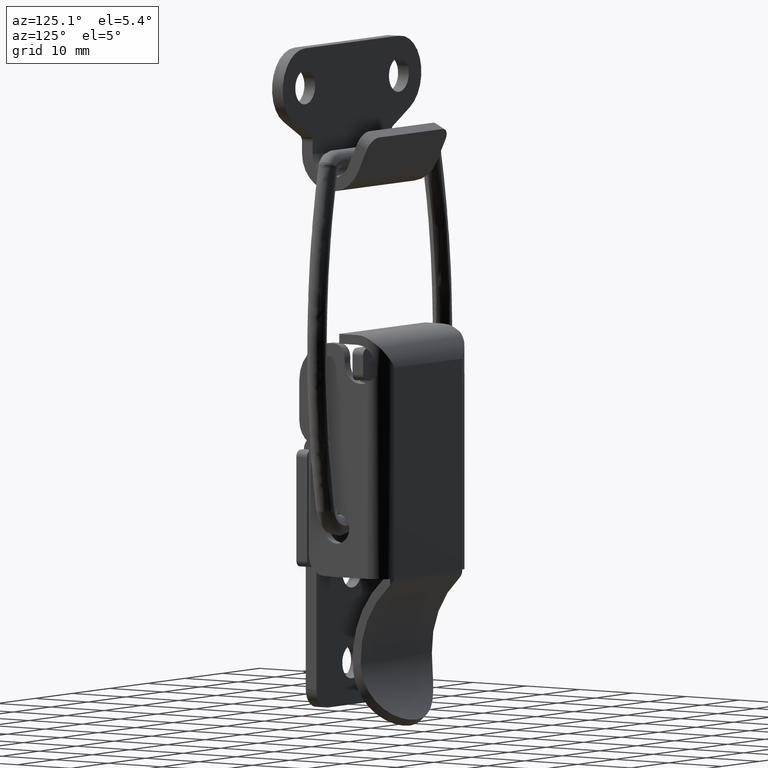
[diagram: clean part render]
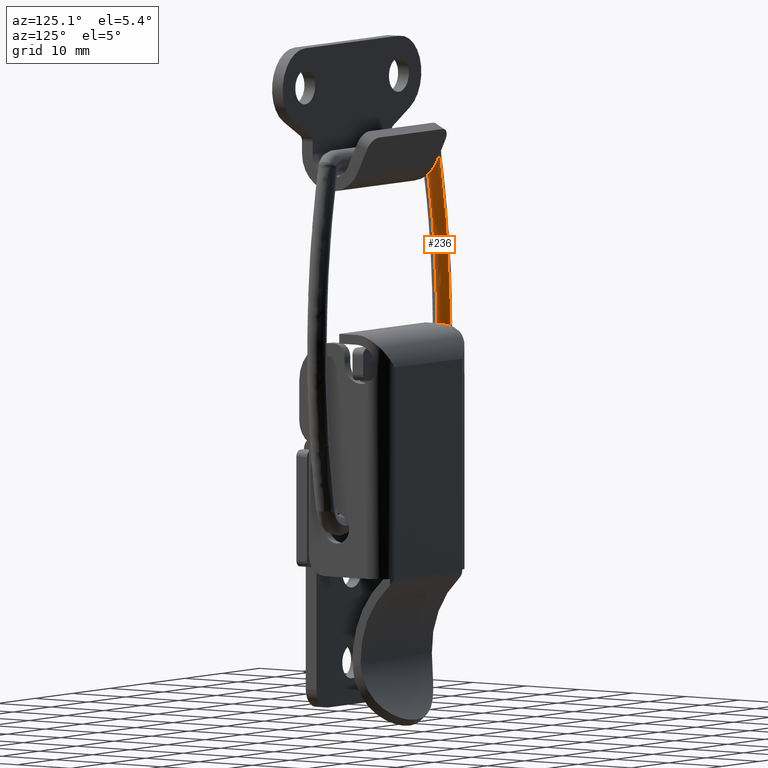
[diagram: same view with one face highlighted and labeled with its STEP entity id]
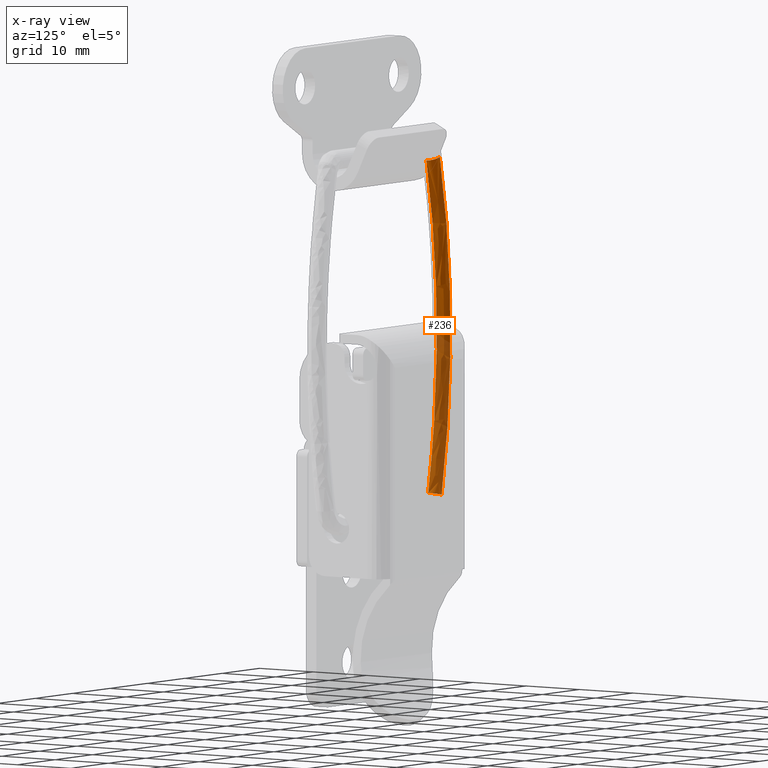
[diagram: x-ray of the same camera — body ghosted, the highlighted face saturated]
A machine part, auxiliary view. The second image highlights one B-rep face of the part: STEP entity #236.
The next image is the same camera in x-ray: the body ghosted, the highlighted face saturated — about 46% of this face is hidden behind the body in this view.
In plain terms, the highlighted face is a freeform B-spline surface patch.
Its self-contained STEP definition (entity closure, byte-faithful):
#236=ADVANCED_FACE('',(#833),#832,.T.);
#832=( BOUNDED_SURFACE() B_SPLINE_SURFACE( 2,2,((#2233,#2234,#2235),(#2236,#2237,#2238),(#2239,#2240,#2241)), .UNSPECIFIED.,.F.,.F.,.F.) B_SPLINE_SURFACE_WITH_KNOTS((3,3),(3,3),(1.57079632683E+00,3.14159265359E+00),(6.74817877553E-03,4.03139454788E-01), .UNSPECIFIED. ) GEOMETRIC_REPRESENTATION_ITEM() RATIONAL_B_SPLINE_SURFACE(((9.99320464349E-01,9.79695528811E-01,9.99214083177E-01),(7.06626276934E-01,6.92749351934E-01,7.06551054085E-01),(9.99320464361E-01,9.79695528822E-01,9.99214083188E-01))) REPRESENTATION_ITEM('') SURFACE() );
#833=FACE_OUTER_BOUND('',#2242,.T.);
#2233=CARTESIAN_POINT('',(-1.38846091981E+01,3.00000000000E+00,-1.43573384935E+00));
#2234=CARTESIAN_POINT('',(-1.93728103813E+01,3.00000000000E+00,-2.74439669393E+01));
#2235=CARTESIAN_POINT('',(-1.43913563508E+01,3.00000000000E+00,-5.35539967446E+01));
#2236=CARTESIAN_POINT('',(-1.24169301115E+01,2.99999999996E+00,-1.74544032083E+00));
#2237=CARTESIAN_POINT('',(-1.78429166352E+01,2.99999999996E+00,-2.74588421339E+01));
#2238=CARTESIAN_POINT('',(-1.29179327405E+01,2.99999999996E+00,-5.32728866870E+01));
#2239=CARTESIAN_POINT('',(-1.24169301115E+01,1.50000000000E+00,-1.74544032083E+00));
#2240=CARTESIAN_POINT('',(-1.78429166352E+01,1.50000000000E+00,-2.74588421339E+01));
#2241=CARTESIAN_POINT('',(-1.29179327405E+01,1.50000000000E+00,-5.32728866870E+01));
#2242=EDGE_LOOP('',(#3002,#3003,#3004,#3005));
#3002=ORIENTED_EDGE('',*,*,#3662,.F.);
#3003=ORIENTED_EDGE('',*,*,#3659,.F.);
#3004=ORIENTED_EDGE('',*,*,#3660,.F.);
#3005=ORIENTED_EDGE('',*,*,#3595,.T.);
#3595=EDGE_CURVE('',#4374,#4394,#4401,.T.);
#3659=EDGE_CURVE('',#4720,#4739,#4825,.T.);
#3660=EDGE_CURVE('',#4374,#4720,#4831,.T.);
#3662=EDGE_CURVE('',#4739,#4394,#4843,.T.);
#4374=VERTEX_POINT('',#6794);
#4394=VERTEX_POINT('',#6817);
#4401=(BOUNDED_CURVE() B_SPLINE_CURVE(2,(#6822,#6823,#6824),.UNSPECIFIED.,.F.,.F.) B_SPLINE_CURVE_WITH_KNOTS((3,3),(8.53094658823E-03,4.03139454961E-01),.UNSPECIFIED.) CURVE() GEOMETRIC_REPRESENTATION_ITEM() RATIONAL_B_SPLINE_CURVE((9.99144730032E-01,9.79783313415E-01,9.99214083205E-01)) REPRESENTATION_ITEM('') );
#4720=VERTEX_POINT('',#7050);
#4739=VERTEX_POINT('',#7062);
#4825=CIRCLE('',#7118,1.32320932970E+02);
#4831=(BOUNDED_CURVE() B_SPLINE_CURVE(3,(#7119,#7120,#7121,#7122,#7123,#7124,#7125,#7126,#7127,#7128,#7129,#7130),.UNSPECIFIED.,.F.,.F.) B_SPLINE_CURVE_WITH_KNOTS((4,2,2,2,2,4),(4.76694483527E-12,1.17571820510E-03,1.46971839424E-03,1.76371858338E-03,2.05771877251E-03,2.35171896165E-03),.UNSPECIFIED.) CURVE() GEOMETRIC_REPRESENTATION_ITEM() RATIONAL_B_SPLINE_CURVE((1.00000000000E+00,1.00000000000E+00,1.00000000000E+00,1.00000000000E+00,1.00000000000E+00,1.00000000000E+00,1.00000000000E+00,1.00000000000E+00,1.00000000000E+00,1.00000000000E+00,1.00000000000E+00,1.00000000000E+00)) REPRESENTATION_ITEM('') );
#4843=CIRCLE('',#7138,1.50000000000E+00);
#6794=CARTESIAN_POINT('',(-1.24645816482E+01,1.49999999804E+00,-1.97225220524E+00));
#6817=CARTESIAN_POINT('',(-1.29179327405E+01,1.49999999977E+00,-5.32728866870E+01));
#6822=CARTESIAN_POINT('',(-1.24645816428E+01,1.50000000000E+00,-1.97225218277E+00));
#6823=CARTESIAN_POINT('',(-1.78203272728E+01,1.50000000000E+00,-2.75772431151E+01));
#6824=CARTESIAN_POINT('',(-1.29179327363E+01,1.50000000000E+00,-5.32728867091E+01));
#7050=CARTESIAN_POINT('',(-1.38910221083E+01,3.00000000000E+00,-1.46455811604E+00));
#7062=CARTESIAN_POINT('',(-1.43913552538E+01,3.00000000000E+00,-5.35540024951E+01));
#7115=CARTESIAN_POINT('',(1.15585168170E+02,3.00000000000E+00,-2.87561666860E+01));
#7116=DIRECTION('',(0.00000000000E+00,-1.00000000000E+00,0.00000000000E+00));
#7117=DIRECTION('',(-0.00000000000E+00,-0.00000000000E+00,-1.00000000000E+00));
#7118=AXIS2_PLACEMENT_3D('',#7115,#7116,#7117);
#7119=CARTESIAN_POINT('',(-1.24645816562E+01,1.49980880152E+00,-1.97225220223E+00));
#7120=CARTESIAN_POINT('',(-1.24645099618E+01,1.89759783896E+00,-1.97228092694E+00));
#7121=CARTESIAN_POINT('',(-1.26170675746E+01,2.28419959699E+00,-1.90996208517E+00));
#7122=CARTESIAN_POINT('',(-1.29479265834E+01,2.63185816395E+00,-1.78846221289E+00));
#7123=CARTESIAN_POINT('',(-1.30196534267E+01,2.69358379898E+00,-1.76251894238E+00));
#7124=CARTESIAN_POINT('',(-1.31739601577E+01,2.80187698973E+00,-1.70762576198E+00));
#7125=CARTESIAN_POINT('',(-1.32575117387E+01,2.84875842833E+00,-1.67834278385E+00));
#7126=CARTESIAN_POINT('',(-1.34296544057E+01,2.92348978041E+00,-1.61890537524E+00));
#7127=CARTESIAN_POINT('',(-1.35185103372E+01,2.95178364432E+00,-1.58864518507E+00));
#7128=CARTESIAN_POINT('',(-1.37018117363E+01,2.99013639449E+00,-1.52701379623E+00));
#7129=CARTESIAN_POINT('',(-1.37976009655E+01,3.00000000000E+00,-1.49522643929E+00));
#7130=CARTESIAN_POINT('',(-1.38907025875E+01,3.00000000000E+00,-1.46462598697E+00));
#7135=CARTESIAN_POINT('',(-1.43913563509E+01,1.50000000000E+00,-5.35539967446E+01));
#7136=DIRECTION('',(1.87406705061E-01,1.07624828827E-15,-9.82282406896E-01));
#7137=DIRECTION('',(-1.21559689128E-07,1.00000000000E+00,-2.31920062616E-08));
#7138=AXIS2_PLACEMENT_3D('',#7135,#7136,#7137);